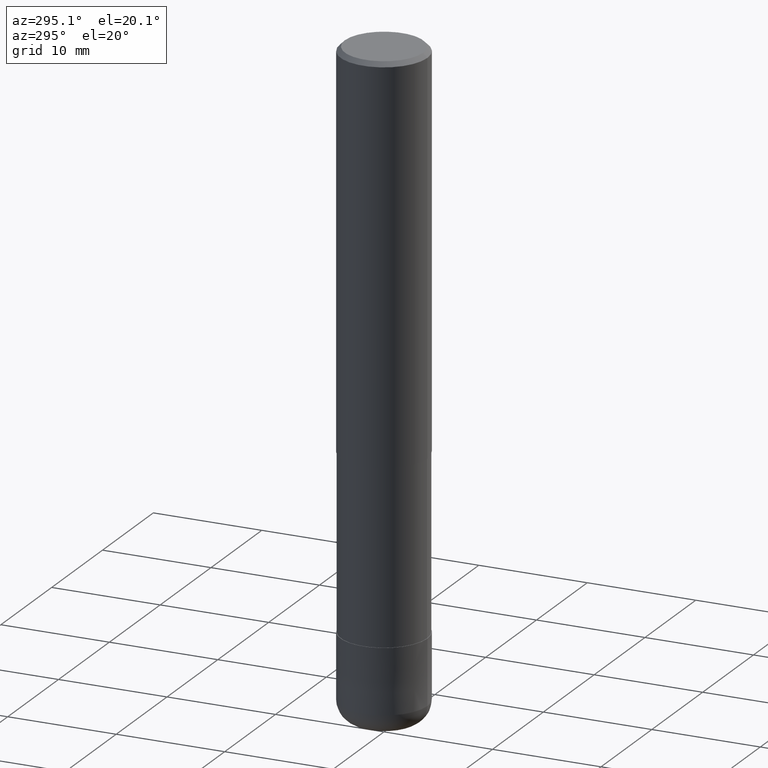
[diagram: clean part render]
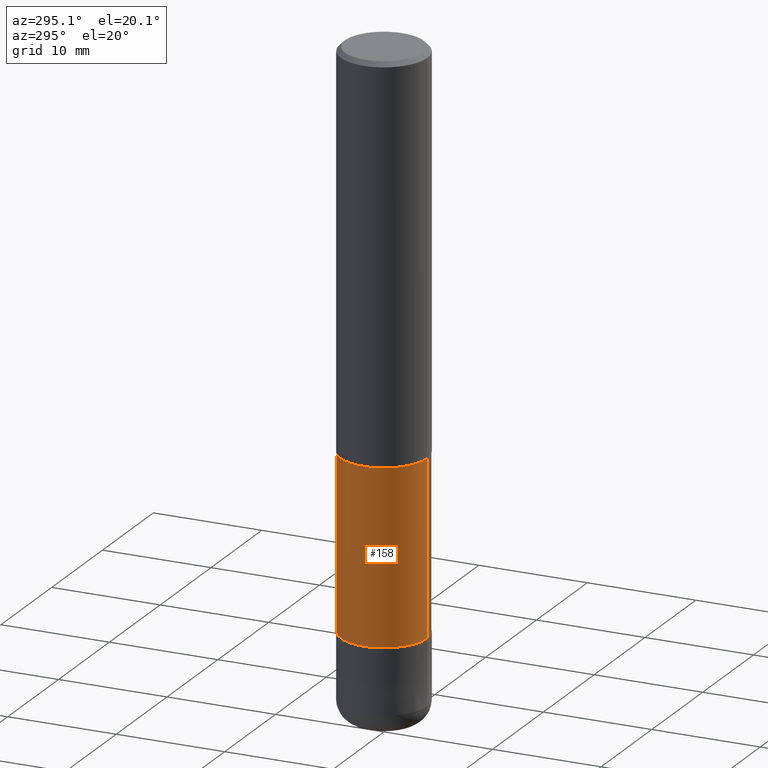
[diagram: same view with one face highlighted and labeled with its STEP entity id]
A machine part, auxiliary view. The second image highlights one B-rep face of the part: STEP entity #158.
In plain terms, the highlighted cylindrical surface (partial cylindrical patch) has radius 3.96 mm, axis along (-0, -0, 1).
Its self-contained STEP definition (entity closure, byte-faithful):
#100=VERTEX_POINT('',#241);
#102=VERTEX_POINT('',#243);
#128=EDGE_CURVE('',#102,#168,#271,.T.);
#158=ADVANCED_FACE('',(#303),#304,.T.);
#164=VERTEX_POINT('',#311);
#168=VERTEX_POINT('',#316);
#182=EDGE_CURVE('',#100,#168,#331,.T.);
#186=EDGE_CURVE('',#164,#100,#336,.T.);
#196=EDGE_CURVE('',#102,#164,#349,.T.);
#241=CARTESIAN_POINT('',(0.0,3.95995,-36.0));
#243=CARTESIAN_POINT('',(4.84937993081892E-016,-3.95995,-52.0));
#271=CIRCLE('',#424,3.95995);
#303=FACE_OUTER_BOUND('',#467,.T.);
#304=CYLINDRICAL_SURFACE('',#468,3.95995);
#311=CARTESIAN_POINT('',(4.84937993081892E-016,-3.95995,-36.0));
#316=CARTESIAN_POINT('',(0.0,3.95995,-52.0));
#331=LINE('',#500,#501);
#336=CIRCLE('',#507,3.95995);
#349=LINE('',#522,#523);
#424=AXIS2_PLACEMENT_3D('',#596,#597,#598);
#467=EDGE_LOOP('',(#632,#633,#634,#635));
#468=AXIS2_PLACEMENT_3D('',#636,#637,#638);
#500=CARTESIAN_POINT('',(-4.84937993081892E-016,3.95995,-44.0));
#501=VECTOR('',#674,1.0);
#507=AXIS2_PLACEMENT_3D('',#683,#684,#685);
#522=CARTESIAN_POINT('',(4.84937993081892E-016,-3.95995,-44.0));
#523=VECTOR('',#707,1.0);
#596=CARTESIAN_POINT('',(0.0,0.0,-52.0));
#597=DIRECTION('',(0.0,0.0,-1.0));
#598=DIRECTION('',(0.0,1.0,0.0));
#632=ORIENTED_EDGE('',*,*,#182,.T.);
#633=ORIENTED_EDGE('',*,*,#128,.F.);
#634=ORIENTED_EDGE('',*,*,#196,.T.);
#635=ORIENTED_EDGE('',*,*,#186,.T.);
#636=CARTESIAN_POINT('',(0.0,0.0,-44.0));
#637=DIRECTION('',(-0.0,-0.0,1.0));
#638=DIRECTION('',(0.0,1.0,0.0));
#674=DIRECTION('',(0.0,0.0,-1.0));
#683=CARTESIAN_POINT('',(0.0,0.0,-36.0));
#684=DIRECTION('',(0.0,0.0,-1.0));
#685=DIRECTION('',(0.0,1.0,0.0));
#707=DIRECTION('',(-0.0,-0.0,1.0));